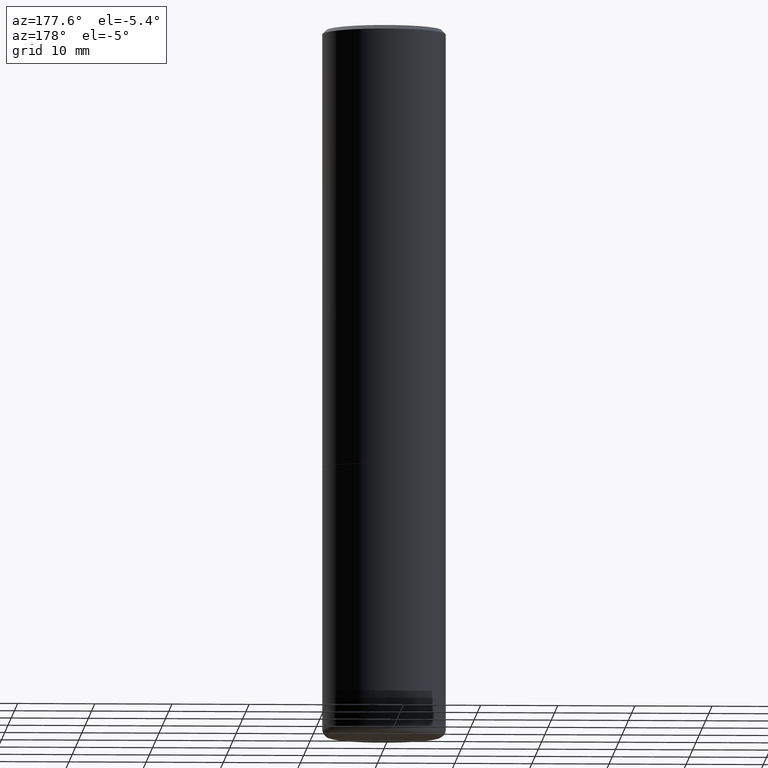
[diagram: clean part render]
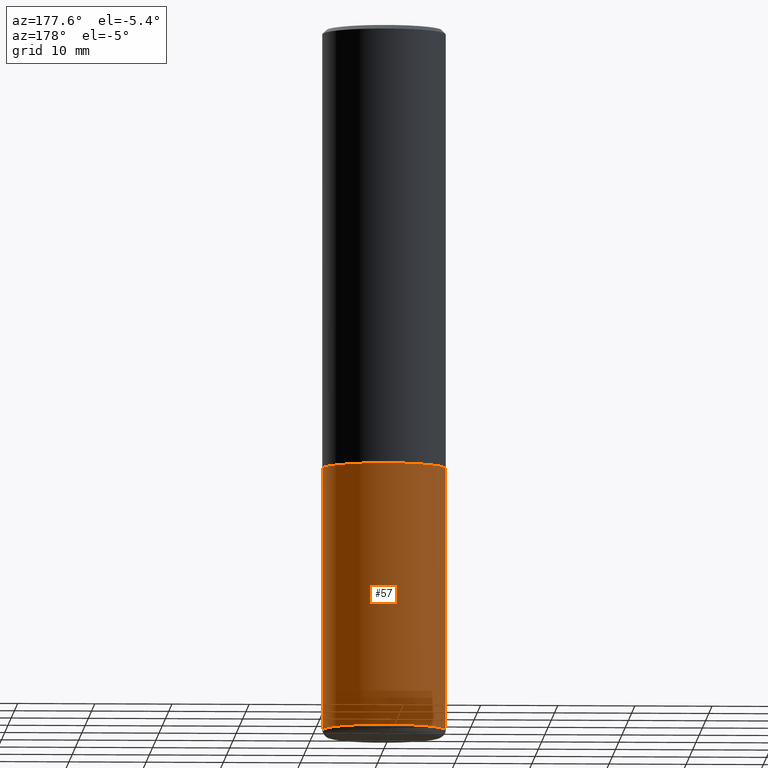
[diagram: same view with one face highlighted and labeled with its STEP entity id]
A machine part, auxiliary view. The second image highlights one B-rep face of the part: STEP entity #57.
In plain terms, the highlighted cylindrical surface (partial cylindrical patch) has radius 7.9997 mm, axis along (-0, 0, 1).
Its self-contained STEP definition (entity closure, byte-faithful):
#11 = EDGE_CURVE ( 'NONE', #14, #198, #113, .T. ) ;
#14 = VERTEX_POINT ( 'NONE', #410 ) ;
#26 = AXIS2_PLACEMENT_3D ( 'NONE', #414, #212, #155 ) ;
#41 = ORIENTED_EDGE ( 'NONE', *, *, #396, .T. ) ;
#49 = ORIENTED_EDGE ( 'NONE', *, *, #11, .T. ) ;
#50 = VECTOR ( 'NONE', #93, 39.37007874015748143 ) ;
#53 = CARTESIAN_POINT ( 'NONE',  ( 0.3149500000000000077, -1.003416821970130712E-14, -2.243999999999999773 ) ) ;
#57 = ADVANCED_FACE ( 'NONE', ( #244 ), #120, .T. ) ;
#69 = VERTEX_POINT ( 'NONE', #53 ) ;
#71 = CARTESIAN_POINT ( 'NONE',  ( 0.3149500000000000077, -1.470786513987673949E-14, -3.582599999999999785 ) ) ;
#73 = EDGE_CURVE ( 'NONE', #69, #198, #156, .T. ) ;
#80 = DIRECTION ( 'NONE',  ( -2.445468806185136877E-29, 3.491481338843145188E-15, 1.000000000000000000 ) ) ;
#83 = CARTESIAN_POINT ( 'NONE',  ( 0.000000000000000000, 0.000000000000000000, 0.000000000000000000 ) ) ;
#93 = DIRECTION ( 'NONE',  ( -2.445468806185136877E-29, 3.491481338843145188E-15, 1.000000000000000000 ) ) ;
#98 = CARTESIAN_POINT ( 'NONE',  ( 8.761136545038868759E-29, -1.250858104453945120E-14, -3.582599999999999785 ) ) ;
#99 = ORIENTED_EDGE ( 'NONE', *, *, #73, .F. ) ;
#104 = AXIS2_PLACEMENT_3D ( 'NONE', #83, #246, #343 ) ;
#108 = EDGE_LOOP ( 'NONE', ( #41, #49, #99, #372 ) ) ;
#113 = LINE ( 'NONE', #186, #148 ) ;
#120 = CYLINDRICAL_SURFACE ( 'NONE', #104, 0.3149500000000000077 ) ;
#122 = AXIS2_PLACEMENT_3D ( 'NONE', #98, #390, #295 ) ;
#140 = LINE ( 'NONE', #386, #50 ) ;
#148 = VECTOR ( 'NONE', #80, 39.37007874015748143 ) ;
#155 = DIRECTION ( 'NONE',  ( 1.000000000000000000, -6.982962677686266711E-15, 0.000000000000000000 ) ) ;
#156 = CIRCLE ( 'NONE', #26, 0.3149500000000000077 ) ;
#186 = CARTESIAN_POINT ( 'NONE',  ( -0.3149500000000000077, 2.237854346276435590E-15, -1.549218606675782676E-29 ) ) ;
#198 = VERTEX_POINT ( 'NONE', #286 ) ;
#212 = DIRECTION ( 'NONE',  ( -2.445468806185136597E-29, 3.491481338843145583E-15, 1.000000000000000000 ) ) ;
#237 = EDGE_CURVE ( 'NONE', #300, #69, #140, .T. ) ;
#244 = FACE_OUTER_BOUND ( 'NONE', #108, .T. ) ;
#246 = DIRECTION ( 'NONE',  ( -2.445468806185136597E-29, 3.491481338843145583E-15, 1.000000000000000000 ) ) ;
#286 = CARTESIAN_POINT ( 'NONE',  ( -0.3149500000000000077, -7.933878238175299817E-15, -2.243999999999999773 ) ) ;
#295 = DIRECTION ( 'NONE',  ( 1.000000000000000000, -6.982962677686263555E-15, 0.000000000000000000 ) ) ;
#300 = VERTEX_POINT ( 'NONE', #71 ) ;
#301 = CIRCLE ( 'NONE', #122, 0.3149500000000000077 ) ;
#343 = DIRECTION ( 'NONE',  ( 1.000000000000000000, -6.982962677686266711E-15, 4.876176775795936353E-29 ) ) ;
#372 = ORIENTED_EDGE ( 'NONE', *, *, #237, .F. ) ;
#386 = CARTESIAN_POINT ( 'NONE',  ( 0.3149500000000000077, -2.199284095337289871E-15, 1.535751875536930130E-29 ) ) ;
#390 = DIRECTION ( 'NONE',  ( -2.445468806185136597E-29, 3.491481338843145583E-15, 1.000000000000000000 ) ) ;
#396 = EDGE_CURVE ( 'NONE', #300, #14, #301, .T. ) ;
#410 = CARTESIAN_POINT ( 'NONE',  ( -0.3149500000000000077, -1.027072669826301679E-14, -3.582599999999999785 ) ) ;
#414 = CARTESIAN_POINT ( 'NONE',  ( 5.487632001079445967E-29, -7.834884124364017250E-15, -2.243999999999999773 ) ) ;